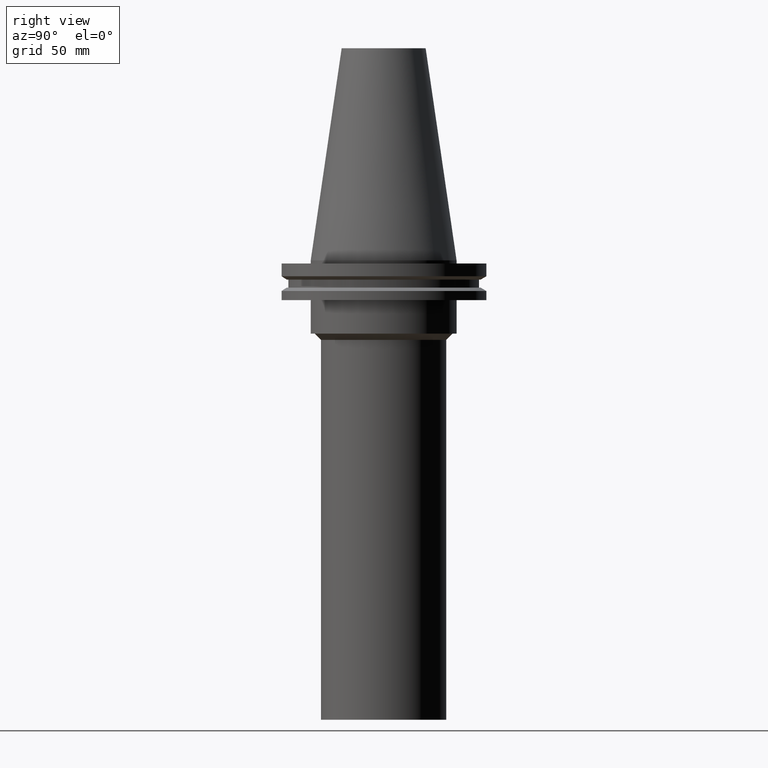
[diagram: clean part render]
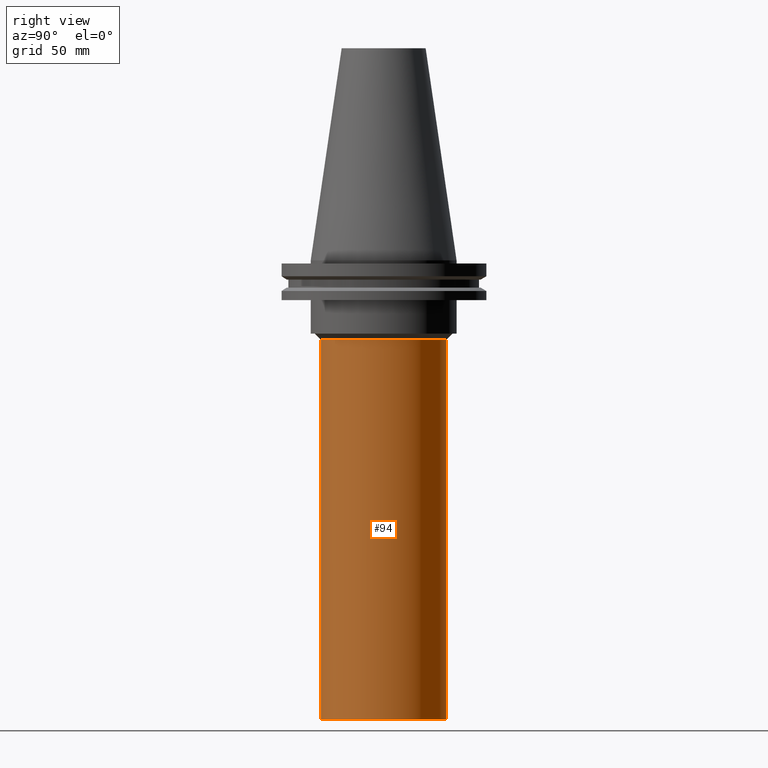
[diagram: same view with one face highlighted and labeled with its STEP entity id]
A machine part, right view. The second image highlights one B-rep face of the part: STEP entity #94.
In plain terms, the highlighted cylindrical surface (bore or boss wall) has radius 30 mm, axis along (0, 0, -1).
Its self-contained STEP definition (entity closure, byte-faithful):
#78=EDGE_CURVE('Unnamed[1]',#190,#190,#191,.T.);
#80=EDGE_CURVE('Unnamed[1]',#193,#193,#194,.T.);
#94=ADVANCED_FACE('Unnamed[1]',(#214,#215),#216,.T.);
#190=VERTEX_POINT('',#337);
#191=CIRCLE('',#338,29.9999999999994);
#193=VERTEX_POINT('',#341);
#194=CIRCLE('',#342,29.9999999999999);
#214=FACE_BOUND('',#367,.T.);
#215=FACE_BOUND('',#368,.T.);
#216=CYLINDRICAL_SURFACE('',#369,29.9999999999996);
#337=CARTESIAN_POINT('',(2.32989053537783E-015,29.9999999999993,-38.0499999999998));
#338=AXIS2_PLACEMENT_3D('',#500,#501,#502);
#341=CARTESIAN_POINT('',(1.34711147906209E-014,29.9999999999999,-220.0));
#342=AXIS2_PLACEMENT_3D('',#503,#504,#505);
#367=EDGE_LOOP('',(#527));
#368=EDGE_LOOP('',(#528));
#369=AXIS2_PLACEMENT_3D('',#529,#530,#531);
#500=CARTESIAN_POINT('',(2.32989053537783E-015,-7.631843805181E-015,-38.0499999999998));
#501=DIRECTION('',(6.12323399573677E-017,4.32878246115826E-016,-1.0));
#502=DIRECTION('',(-3.13333006570825E-032,1.0,4.32878246115826E-016));
#503=CARTESIAN_POINT('',(1.34711147906209E-014,7.11303530755864E-014,-220.0));
#504=DIRECTION('',(6.12323399573676E-017,4.32878246115818E-016,-1.0));
#505=DIRECTION('',(-3.13333006570819E-032,1.0,4.32878246115818E-016));
#527=ORIENTED_EDGE('',*,*,#80,.F.);
#528=ORIENTED_EDGE('',*,*,#78,.T.);
#529=CARTESIAN_POINT('',(7.90050266299936E-015,3.17492546352027E-014,-129.025));
#530=DIRECTION('',(6.12323399573677E-017,4.32878246115822E-016,-1.0));
#531=DIRECTION('',(-3.13333006570882E-032,1.0,4.32878246115822E-016));